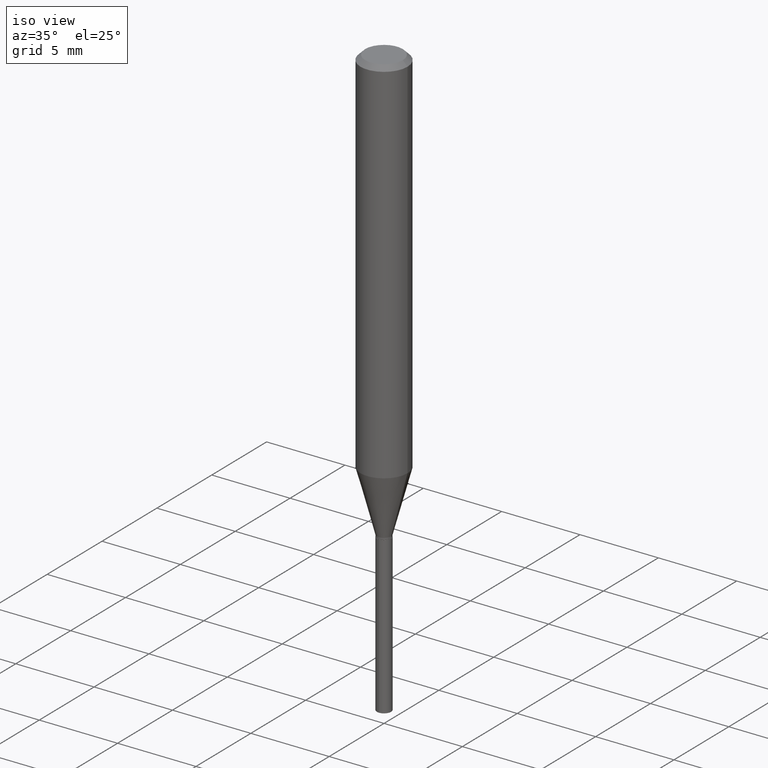
[diagram: clean part render]
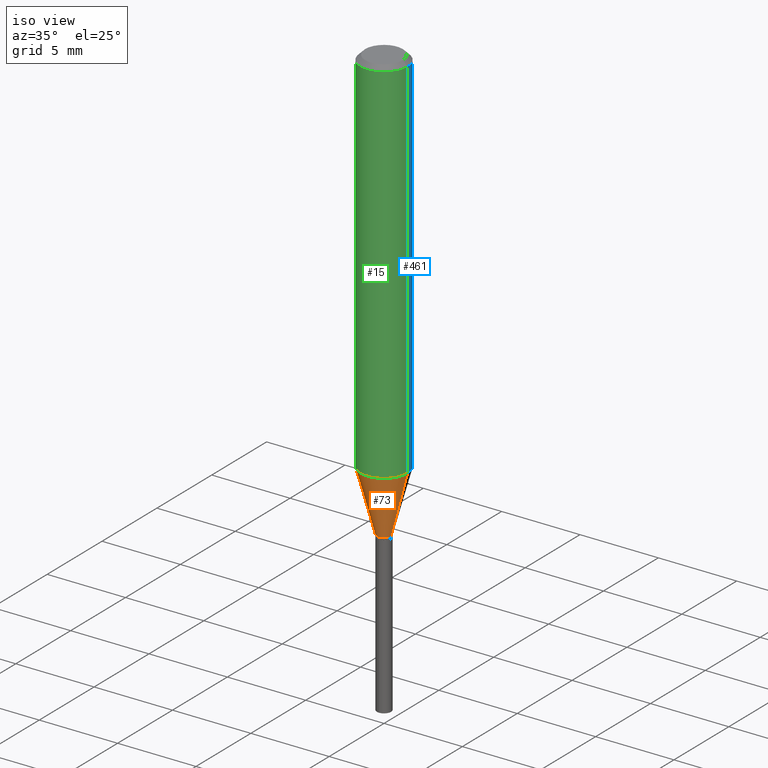
[diagram: same view with three faces highlighted in distinct colors, each labeled with its STEP entity id]
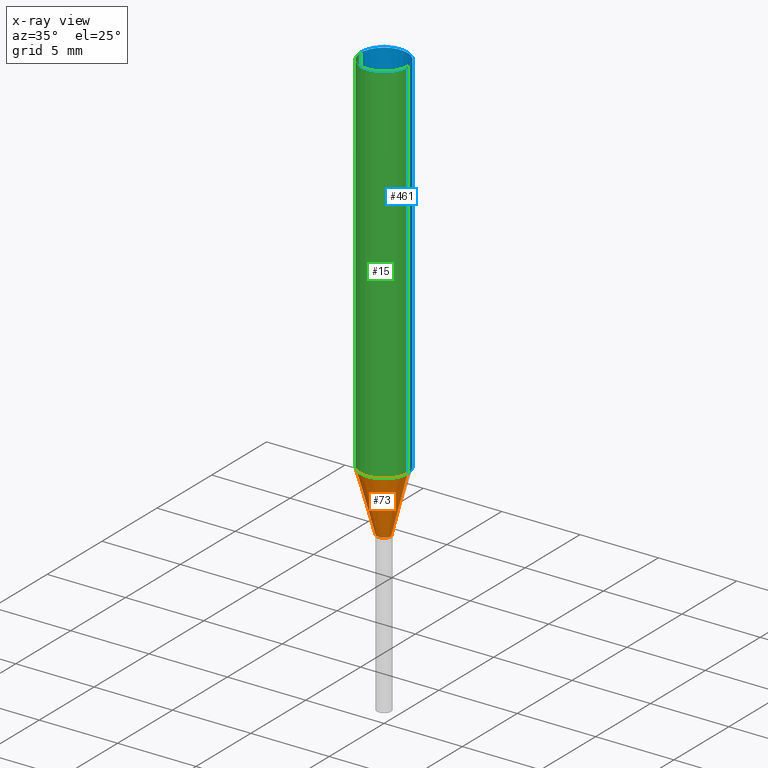
[diagram: x-ray of the same camera — body ghosted, the three highlighted faces saturated]
A machine part, iso view with three faces highlighted in distinct colors.
The next image is the same camera in x-ray (body ghosted, the three faces saturated) — at least one of them is partly hidden behind the body in this view.
Their STEP definitions:

[orange] entity #73 — the highlighted conical surface has half-angle 15 deg.
#16 = CARTESIAN_POINT ( 'NONE',  ( 2.663604623696850789E-29, -3.802921474267954047E-15, -1.089199999999999946 ) ) ;
#17 = CIRCLE ( 'NONE', #309, 0.05905000000000010935 ) ;
#21 = VERTEX_POINT ( 'NONE', #203 ) ;
#48 = CONICAL_SURFACE ( 'NONE', #466, 0.01770000000000000046, 0.2617993877991498519 ) ;
#61 = VECTOR ( 'NONE', #369, 39.37007874015748854 ) ;
#70 = CARTESIAN_POINT ( 'NONE',  ( -0.01770000000000000046, -3.677155410038416754E-15, -1.089199999999999946 ) ) ;
#73 = ADVANCED_FACE ( 'NONE', ( #251 ), #48, .T. ) ;
#74 = DIRECTION ( 'NONE',  ( -0.2588190451025211281, 5.211531920934547886E-15, 0.9659258262890679791 ) ) ;
#88 = VECTOR ( 'NONE', #74, 39.37007874015748854 ) ;
#98 = ORIENTED_EDGE ( 'NONE', *, *, #191, .T. ) ;
#117 = LINE ( 'NONE', #70, #88 ) ;
#120 = AXIS2_PLACEMENT_3D ( 'NONE', #470, #425, #356 ) ;
#130 = EDGE_CURVE ( 'NONE', #281, #414, #17, .T. ) ;
#132 = CARTESIAN_POINT ( 'NONE',  ( -0.05905000000000010935, -2.844539538029139057E-15, -0.9348796991070267293 ) ) ;
#137 = ORIENTED_EDGE ( 'NONE', *, *, #334, .T. ) ;
#191 = EDGE_CURVE ( 'NONE', #21, #414, #374, .T. ) ;
#203 = CARTESIAN_POINT ( 'NONE',  ( 0.01770000000000000046, -3.926519913663001232E-15, -1.089199999999999946 ) ) ;
#216 = DIRECTION ( 'NONE',  ( -2.445468806185136597E-29, 3.491481338843145583E-15, 1.000000000000000000 ) ) ;
#229 = EDGE_LOOP ( 'NONE', ( #408, #137, #98, #245 ) ) ;
#245 = ORIENTED_EDGE ( 'NONE', *, *, #130, .F. ) ;
#251 = FACE_OUTER_BOUND ( 'NONE', #229, .T. ) ;
#281 = VERTEX_POINT ( 'NONE', #132 ) ;
#285 = DIRECTION ( 'NONE',  ( 1.000000000000000000, -6.982962677686271444E-15, 0.000000000000000000 ) ) ;
#309 = AXIS2_PLACEMENT_3D ( 'NONE', #372, #216, #394 ) ;
#329 = DIRECTION ( 'NONE',  ( -2.445468806185136597E-29, 3.491481338843145583E-15, 1.000000000000000000 ) ) ;
#334 = EDGE_CURVE ( 'NONE', #377, #21, #371, .T. ) ;
#356 = DIRECTION ( 'NONE',  ( 1.000000000000000000, -6.982962677686271444E-15, 0.000000000000000000 ) ) ;
#369 = DIRECTION ( 'NONE',  ( 0.2588190451025211281, 1.565188264969622954E-15, 0.9659258262890679791 ) ) ;
#371 = CIRCLE ( 'NONE', #120, 0.01770000000000000046 ) ;
#372 = CARTESIAN_POINT ( 'NONE',  ( 2.286219141701980490E-29, -3.264115023495478945E-15, -0.9348796991070267293 ) ) ;
#374 = LINE ( 'NONE', #479, #61 ) ;
#377 = VERTEX_POINT ( 'NONE', #474 ) ;
#394 = DIRECTION ( 'NONE',  ( 1.000000000000000000, -6.982962677686267499E-15, 0.000000000000000000 ) ) ;
#408 = ORIENTED_EDGE ( 'NONE', *, *, #450, .F. ) ;
#414 = VERTEX_POINT ( 'NONE', #485 ) ;
#425 = DIRECTION ( 'NONE',  ( -2.445468806185136597E-29, 3.491481338843145583E-15, 1.000000000000000000 ) ) ;
#450 = EDGE_CURVE ( 'NONE', #377, #281, #117, .T. ) ;
#466 = AXIS2_PLACEMENT_3D ( 'NONE', #16, #329, #285 ) ;
#470 = CARTESIAN_POINT ( 'NONE',  ( 2.663604623696850789E-29, -3.802921474267954047E-15, -1.089199999999999946 ) ) ;
#474 = CARTESIAN_POINT ( 'NONE',  ( -0.01770000000000000046, -3.685534965251639971E-15, -1.089199999999999946 ) ) ;
#479 = CARTESIAN_POINT ( 'NONE',  ( 0.01770000000000000046, -3.926519913663001232E-15, -1.089199999999999946 ) ) ;
#485 = CARTESIAN_POINT ( 'NONE',  ( 0.05905000000000010935, -3.676458969612853865E-15, -0.9348796991070267293 ) ) ;

[blue] entity #461 — the highlighted cylindrical surface (edge-blend (fillet) strip) has radius 1.4999 mm, axis along (-0, 0, 1).
#3 = ORIENTED_EDGE ( 'NONE', *, *, #215, .F. ) ;
#39 = ORIENTED_EDGE ( 'NONE', *, *, #404, .T. ) ;
#53 = DIRECTION ( 'NONE',  ( 1.000000000000000000, -6.982962677686267499E-15, 0.000000000000000000 ) ) ;
#55 = DIRECTION ( 'NONE',  ( -2.445468806185136877E-29, 3.491481338843145188E-15, 1.000000000000000000 ) ) ;
#97 = AXIS2_PLACEMENT_3D ( 'NONE', #184, #336, #112 ) ;
#108 = CARTESIAN_POINT ( 'NONE',  ( 0.05905000000000005383, -4.123439461173744271E-16, 2.879382386107502672E-30 ) ) ;
#111 = DIRECTION ( 'NONE',  ( 1.000000000000000000, -6.982962677686266711E-15, 4.876176775795935793E-29 ) ) ;
#112 = DIRECTION ( 'NONE',  ( 1.000000000000000000, -6.982962677686266711E-15, 0.000000000000000000 ) ) ;
#118 = DIRECTION ( 'NONE',  ( -2.445468806185136597E-29, 3.491481338843145583E-15, 1.000000000000000000 ) ) ;
#132 = CARTESIAN_POINT ( 'NONE',  ( -0.05905000000000010935, -2.844539538029139057E-15, -0.9348796991070267293 ) ) ;
#149 = LINE ( 'NONE', #108, #310 ) ;
#156 = FACE_OUTER_BOUND ( 'NONE', #446, .T. ) ;
#158 = CYLINDRICAL_SURFACE ( 'NONE', #382, 0.05905000000000005383 ) ;
#184 = CARTESIAN_POINT ( 'NONE',  ( 2.888098660104663328E-31, -4.123439461173779030E-17, -0.01181000000000006871 ) ) ;
#187 = CARTESIAN_POINT ( 'NONE',  ( 0.05904999999999999832, -4.535783407291118600E-16, -0.01181000000000006871 ) ) ;
#208 = AXIS2_PLACEMENT_3D ( 'NONE', #291, #241, #53 ) ;
#215 = EDGE_CURVE ( 'NONE', #414, #238, #149, .T. ) ;
#218 = CARTESIAN_POINT ( 'NONE',  ( 0.000000000000000000, 0.000000000000000000, 0.000000000000000000 ) ) ;
#220 = CIRCLE ( 'NONE', #97, 0.05904999999999999832 ) ;
#232 = EDGE_CURVE ( 'NONE', #238, #412, #220, .T. ) ;
#238 = VERTEX_POINT ( 'NONE', #187 ) ;
#241 = DIRECTION ( 'NONE',  ( -2.445468806185136597E-29, 3.491481338843145583E-15, 1.000000000000000000 ) ) ;
#246 = LINE ( 'NONE', #464, #353 ) ;
#261 = CIRCLE ( 'NONE', #208, 0.05905000000000010935 ) ;
#281 = VERTEX_POINT ( 'NONE', #132 ) ;
#291 = CARTESIAN_POINT ( 'NONE',  ( 2.286219141701980490E-29, -3.264115023495478945E-15, -0.9348796991070267293 ) ) ;
#293 = DIRECTION ( 'NONE',  ( -2.445468806185136877E-29, 3.491481338843145188E-15, 1.000000000000000000 ) ) ;
#310 = VECTOR ( 'NONE', #293, 39.37007874015748143 ) ;
#336 = DIRECTION ( 'NONE',  ( -2.445468806185136597E-29, 3.491481338843145583E-15, 1.000000000000000000 ) ) ;
#345 = EDGE_CURVE ( 'NONE', #281, #412, #246, .T. ) ;
#348 = ORIENTED_EDGE ( 'NONE', *, *, #345, .T. ) ;
#353 = VECTOR ( 'NONE', #55, 39.37007874015748143 ) ;
#376 = ORIENTED_EDGE ( 'NONE', *, *, #232, .F. ) ;
#382 = AXIS2_PLACEMENT_3D ( 'NONE', #218, #118, #111 ) ;
#385 = CARTESIAN_POINT ( 'NONE',  ( -0.05904999999999999832, -1.233099223587268252E-15, -0.01181000000000006871 ) ) ;
#404 = EDGE_CURVE ( 'NONE', #414, #281, #261, .T. ) ;
#412 = VERTEX_POINT ( 'NONE', #385 ) ;
#414 = VERTEX_POINT ( 'NONE', #485 ) ;
#446 = EDGE_LOOP ( 'NONE', ( #39, #348, #376, #3 ) ) ;
#461 = ADVANCED_FACE ( 'NONE', ( #156 ), #158, .T. ) ;
#464 = CARTESIAN_POINT ( 'NONE',  ( -0.05905000000000005383, 4.195754854663395423E-16, -2.904631170795524694E-30 ) ) ;
#485 = CARTESIAN_POINT ( 'NONE',  ( 0.05905000000000010935, -3.676458969612853865E-15, -0.9348796991070267293 ) ) ;

[green] entity #15 — the highlighted cylindrical surface (edge-blend (fillet) strip) has radius 1.4999 mm, axis along (-0, 0, 1).
#7 = ORIENTED_EDGE ( 'NONE', *, *, #345, .F. ) ;
#13 = CYLINDRICAL_SURFACE ( 'NONE', #298, 0.05905000000000005383 ) ;
#15 = ADVANCED_FACE ( 'NONE', ( #427 ), #13, .T. ) ;
#17 = CIRCLE ( 'NONE', #309, 0.05905000000000010935 ) ;
#55 = DIRECTION ( 'NONE',  ( -2.445468806185136877E-29, 3.491481338843145188E-15, 1.000000000000000000 ) ) ;
#65 = CARTESIAN_POINT ( 'NONE',  ( 2.888098660104663328E-31, -4.123439461173779030E-17, -0.01181000000000006871 ) ) ;
#79 = ORIENTED_EDGE ( 'NONE', *, *, #171, .F. ) ;
#108 = CARTESIAN_POINT ( 'NONE',  ( 0.05905000000000005383, -4.123439461173744271E-16, 2.879382386107502672E-30 ) ) ;
#124 = EDGE_LOOP ( 'NONE', ( #7, #197, #239, #79 ) ) ;
#130 = EDGE_CURVE ( 'NONE', #281, #414, #17, .T. ) ;
#131 = DIRECTION ( 'NONE',  ( 1.000000000000000000, -6.982962677686266711E-15, 4.876176775795935793E-29 ) ) ;
#132 = CARTESIAN_POINT ( 'NONE',  ( -0.05905000000000010935, -2.844539538029139057E-15, -0.9348796991070267293 ) ) ;
#149 = LINE ( 'NONE', #108, #310 ) ;
#151 = DIRECTION ( 'NONE',  ( -2.445468806185136597E-29, 3.491481338843145583E-15, 1.000000000000000000 ) ) ;
#171 = EDGE_CURVE ( 'NONE', #412, #238, #227, .T. ) ;
#174 = DIRECTION ( 'NONE',  ( -2.445468806185136597E-29, 3.491481338843145583E-15, 1.000000000000000000 ) ) ;
#181 = AXIS2_PLACEMENT_3D ( 'NONE', #65, #151, #433 ) ;
#187 = CARTESIAN_POINT ( 'NONE',  ( 0.05904999999999999832, -4.535783407291118600E-16, -0.01181000000000006871 ) ) ;
#197 = ORIENTED_EDGE ( 'NONE', *, *, #130, .T. ) ;
#215 = EDGE_CURVE ( 'NONE', #414, #238, #149, .T. ) ;
#216 = DIRECTION ( 'NONE',  ( -2.445468806185136597E-29, 3.491481338843145583E-15, 1.000000000000000000 ) ) ;
#227 = CIRCLE ( 'NONE', #181, 0.05904999999999999832 ) ;
#238 = VERTEX_POINT ( 'NONE', #187 ) ;
#239 = ORIENTED_EDGE ( 'NONE', *, *, #215, .T. ) ;
#246 = LINE ( 'NONE', #464, #353 ) ;
#281 = VERTEX_POINT ( 'NONE', #132 ) ;
#293 = DIRECTION ( 'NONE',  ( -2.445468806185136877E-29, 3.491481338843145188E-15, 1.000000000000000000 ) ) ;
#298 = AXIS2_PLACEMENT_3D ( 'NONE', #465, #174, #131 ) ;
#309 = AXIS2_PLACEMENT_3D ( 'NONE', #372, #216, #394 ) ;
#310 = VECTOR ( 'NONE', #293, 39.37007874015748143 ) ;
#345 = EDGE_CURVE ( 'NONE', #281, #412, #246, .T. ) ;
#353 = VECTOR ( 'NONE', #55, 39.37007874015748143 ) ;
#372 = CARTESIAN_POINT ( 'NONE',  ( 2.286219141701980490E-29, -3.264115023495478945E-15, -0.9348796991070267293 ) ) ;
#385 = CARTESIAN_POINT ( 'NONE',  ( -0.05904999999999999832, -1.233099223587268252E-15, -0.01181000000000006871 ) ) ;
#394 = DIRECTION ( 'NONE',  ( 1.000000000000000000, -6.982962677686267499E-15, 0.000000000000000000 ) ) ;
#412 = VERTEX_POINT ( 'NONE', #385 ) ;
#414 = VERTEX_POINT ( 'NONE', #485 ) ;
#427 = FACE_OUTER_BOUND ( 'NONE', #124, .T. ) ;
#433 = DIRECTION ( 'NONE',  ( 1.000000000000000000, -6.982962677686266711E-15, 0.000000000000000000 ) ) ;
#464 = CARTESIAN_POINT ( 'NONE',  ( -0.05905000000000005383, 4.195754854663395423E-16, -2.904631170795524694E-30 ) ) ;
#465 = CARTESIAN_POINT ( 'NONE',  ( 0.000000000000000000, 0.000000000000000000, 0.000000000000000000 ) ) ;
#485 = CARTESIAN_POINT ( 'NONE',  ( 0.05905000000000010935, -3.676458969612853865E-15, -0.9348796991070267293 ) ) ;